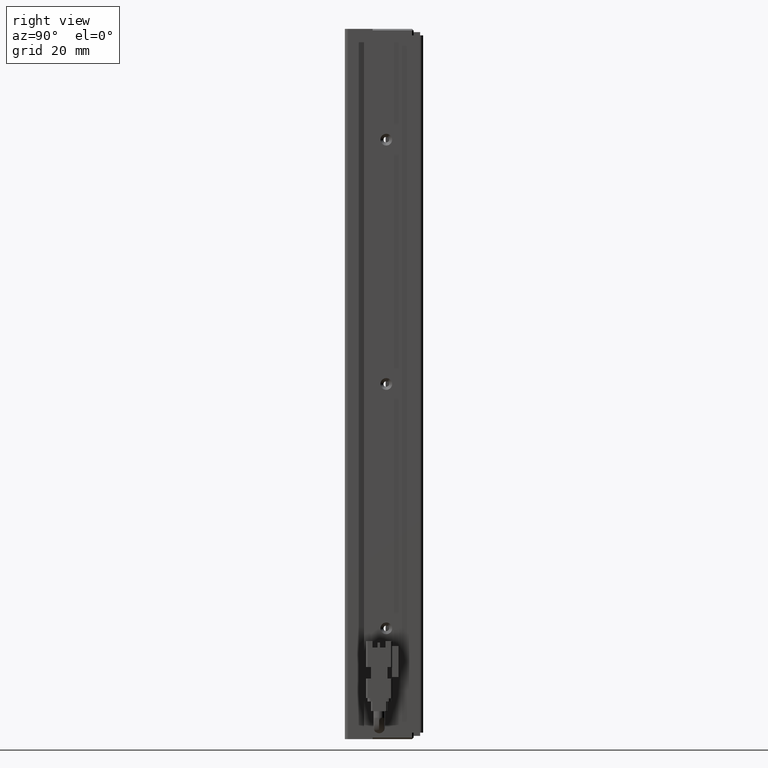
[diagram: clean part render]
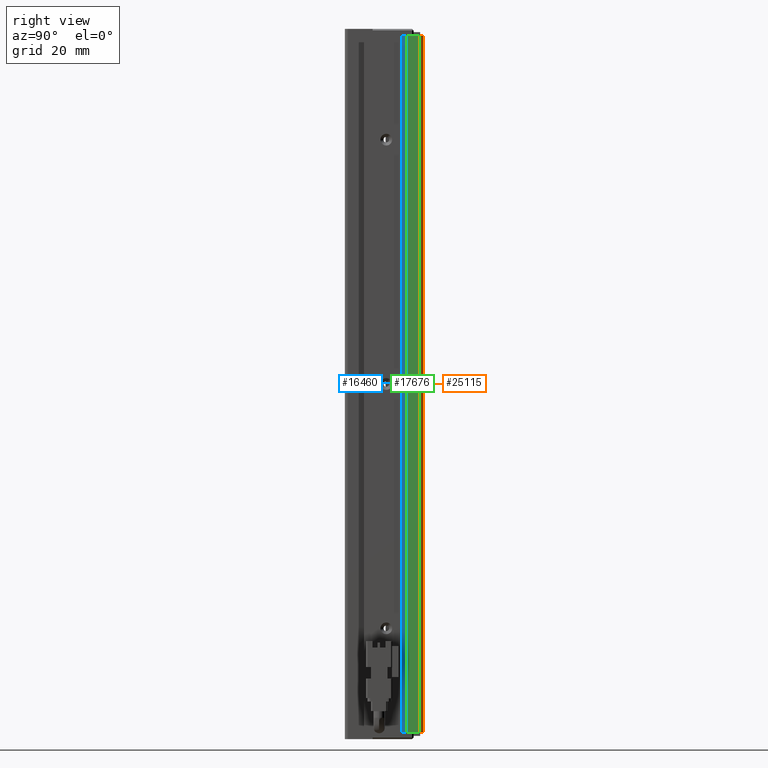
[diagram: same view with three faces highlighted in distinct colors, each labeled with its STEP entity id]
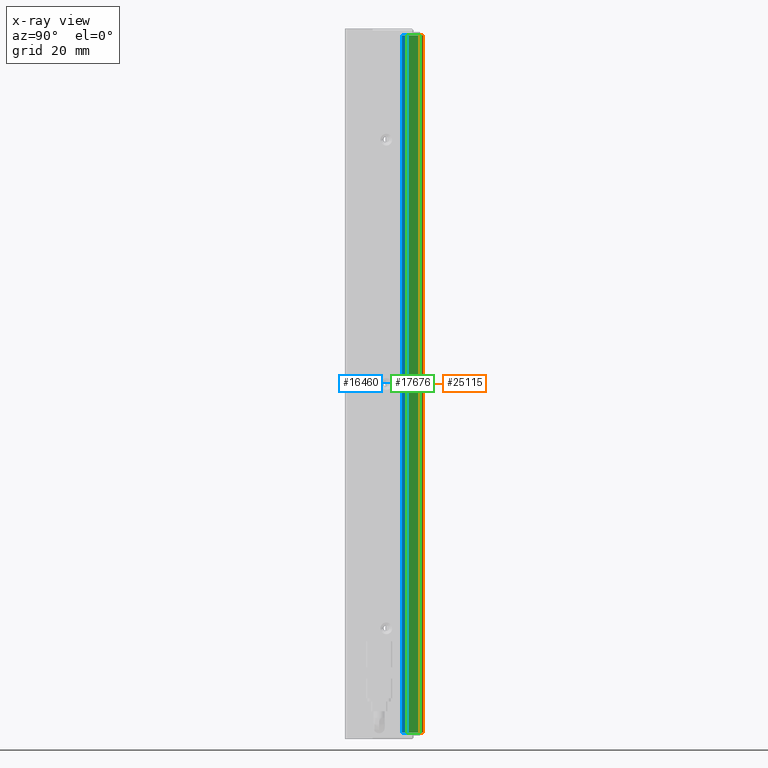
[diagram: x-ray of the same camera — body ghosted, the three highlighted faces saturated]
A machine part, right view with three faces highlighted in distinct colors.
The next image is the same camera in x-ray (body ghosted, the three faces saturated) — at least one of them is partly hidden behind the body in this view.
Their STEP definitions:

[orange] entity #25115 — the highlighted cylindrical surface (edge-blend (fillet) strip) has radius 1 mm, axis along (-0, -0, -1).
#280 = CYLINDRICAL_SURFACE ( 'NONE', #39189, 1.000000000000000900 ) ;
#545 = DIRECTION ( 'NONE',  ( -0.0000000000000000000, -0.0000000000000000000, -1.000000000000000000 ) ) ;
#609 = CIRCLE ( 'NONE', #2718, 1.000000000000000900 ) ;
#702 = CARTESIAN_POINT ( 'NONE',  ( 51.42537974683541800, 33.99073232304837000, -222.0000000000000000 ) ) ;
#1316 = ORIENTED_EDGE ( 'NONE', *, *, #54049, .T. ) ;
#2718 = AXIS2_PLACEMENT_3D ( 'NONE', #45980, #11805, #45265 ) ;
#10220 = EDGE_CURVE ( 'NONE', #32313, #46287, #52945, .T. ) ;
#11144 = DIRECTION ( 'NONE',  ( -0.0000000000000000000, -0.0000000000000000000, -1.000000000000000000 ) ) ;
#11805 = DIRECTION ( 'NONE',  ( 0.0000000000000000000, 0.0000000000000000000, 1.000000000000000000 ) ) ;
#12599 = ORIENTED_EDGE ( 'NONE', *, *, #46702, .T. ) ;
#14161 = DIRECTION ( 'NONE',  ( 0.0000000000000000000, 0.0000000000000000000, 1.000000000000000000 ) ) ;
#15154 = CARTESIAN_POINT ( 'NONE',  ( 50.42537974683541800, 34.99073232304837700, -222.0000000000000000 ) ) ;
#15347 = FACE_OUTER_BOUND ( 'NONE', #50647, .T. ) ;
#16338 = CIRCLE ( 'NONE', #39662, 1.000000000000000900 ) ;
#17797 = CARTESIAN_POINT ( 'NONE',  ( 50.42537974683541800, 33.99073232304837000, -8.000000000000007100 ) ) ;
#18600 = CARTESIAN_POINT ( 'NONE',  ( 50.42537974683541800, 34.99073232304837700, -8.000000000000007100 ) ) ;
#18824 = CARTESIAN_POINT ( 'NONE',  ( 50.42537974683541800, 33.99073232304837000, -6.000000000000005300 ) ) ;
#23773 = ORIENTED_EDGE ( 'NONE', *, *, #26763, .T. ) ;
#25115 = ADVANCED_FACE ( 'NONE', ( #15347 ), #280, .T. ) ;
#25683 = CARTESIAN_POINT ( 'NONE',  ( 50.42537974683541800, 34.99073232304837000, -6.000000000000005300 ) ) ;
#26763 = EDGE_CURVE ( 'NONE', #30300, #32313, #609, .T. ) ;
#29185 = VECTOR ( 'NONE', #545, 1000.000000000000000 ) ;
#29331 = CARTESIAN_POINT ( 'NONE',  ( 51.42537974683541800, 33.99073232304837000, -6.000000000000005300 ) ) ;
#30300 = VERTEX_POINT ( 'NONE', #702 ) ;
#30323 = DIRECTION ( 'NONE',  ( -0.0000000000000000000, -0.0000000000000000000, -1.000000000000000000 ) ) ;
#32070 = DIRECTION ( 'NONE',  ( -1.000000000000000000, 0.0000000000000000000, 0.0000000000000000000 ) ) ;
#32313 = VERTEX_POINT ( 'NONE', #15154 ) ;
#33202 = ORIENTED_EDGE ( 'NONE', *, *, #10220, .T. ) ;
#34598 = DIRECTION ( 'NONE',  ( -1.000000000000000000, 0.0000000000000000000, 0.0000000000000000000 ) ) ;
#37812 = VECTOR ( 'NONE', #14161, 1000.000000000000000 ) ;
#38591 = CARTESIAN_POINT ( 'NONE',  ( 51.42537974683541800, 33.99073232304837000, -8.000000000000007100 ) ) ;
#39082 = LINE ( 'NONE', #29331, #29185 ) ;
#39189 = AXIS2_PLACEMENT_3D ( 'NONE', #18824, #11144, #32070 ) ;
#39662 = AXIS2_PLACEMENT_3D ( 'NONE', #17797, #30323, #34598 ) ;
#45265 = DIRECTION ( 'NONE',  ( -1.000000000000000000, 0.0000000000000000000, 0.0000000000000000000 ) ) ;
#45980 = CARTESIAN_POINT ( 'NONE',  ( 50.42537974683541800, 33.99073232304837000, -222.0000000000000000 ) ) ;
#46287 = VERTEX_POINT ( 'NONE', #18600 ) ;
#46702 = EDGE_CURVE ( 'NONE', #46287, #53580, #16338, .T. ) ;
#50647 = EDGE_LOOP ( 'NONE', ( #1316, #23773, #33202, #12599 ) ) ;
#52945 = LINE ( 'NONE', #25683, #37812 ) ;
#53580 = VERTEX_POINT ( 'NONE', #38591 ) ;
#54049 = EDGE_CURVE ( 'NONE', #53580, #30300, #39082, .T. ) ;

[blue] entity #16460 — the highlighted planar face has unit normal (1, 0, -0).
#553 = DIRECTION ( 'NONE',  ( -0.0000000000000000000, 0.0000000000000000000, -1.000000000000000000 ) ) ;
#2794 = CARTESIAN_POINT ( 'NONE',  ( 50.92537974683541800, 29.99073232304837000, -222.0000000000000000 ) ) ;
#3128 = FACE_OUTER_BOUND ( 'NONE', #5062, .T. ) ;
#5062 = EDGE_LOOP ( 'NONE', ( #27274, #11532, #27841, #52006 ) ) ;
#7311 = DIRECTION ( 'NONE',  ( -0.0000000000000000000, 0.0000000000000000000, -1.000000000000000000 ) ) ;
#8750 = VERTEX_POINT ( 'NONE', #18564 ) ;
#9467 = EDGE_CURVE ( 'NONE', #36146, #19575, #30067, .T. ) ;
#11532 = ORIENTED_EDGE ( 'NONE', *, *, #39621, .F. ) ;
#12701 = CARTESIAN_POINT ( 'NONE',  ( 50.92537974683541800, 28.49073232304836600, -222.0000000000000000 ) ) ;
#14308 = CARTESIAN_POINT ( 'NONE',  ( 50.92537974683541800, 29.99073232304837000, -6.000000000000005300 ) ) ;
#16460 = ADVANCED_FACE ( 'NONE', ( #3128 ), #45705, .T. ) ;
#18564 = CARTESIAN_POINT ( 'NONE',  ( 50.92537974683541800, 29.99073232304837000, -8.000000000000007100 ) ) ;
#19575 = VERTEX_POINT ( 'NONE', #2794 ) ;
#20414 = EDGE_CURVE ( 'NONE', #32567, #36146, #22394, .T. ) ;
#20481 = CARTESIAN_POINT ( 'NONE',  ( 50.92537974683541800, 7.083797468354437600, -6.000000000000005300 ) ) ;
#22394 = LINE ( 'NONE', #26020, #53314 ) ;
#24262 = VECTOR ( 'NONE', #28860, 1000.000000000000000 ) ;
#24663 = DIRECTION ( 'NONE',  ( 0.0000000000000000000, 1.000000000000000000, 0.0000000000000000000 ) ) ;
#26020 = CARTESIAN_POINT ( 'NONE',  ( 50.92537974683541800, 28.49073232304836600, -6.000000000000005300 ) ) ;
#27274 = ORIENTED_EDGE ( 'NONE', *, *, #9467, .T. ) ;
#27841 = ORIENTED_EDGE ( 'NONE', *, *, #46482, .T. ) ;
#28860 = DIRECTION ( 'NONE',  ( -0.0000000000000000000, -1.000000000000000000, -0.0000000000000000000 ) ) ;
#30067 = LINE ( 'NONE', #53709, #45824 ) ;
#31955 = AXIS2_PLACEMENT_3D ( 'NONE', #20481, #45520, #7311 ) ;
#32217 = LINE ( 'NONE', #54017, #24262 ) ;
#32567 = VERTEX_POINT ( 'NONE', #50423 ) ;
#33452 = VECTOR ( 'NONE', #44267, 1000.000000000000000 ) ;
#36146 = VERTEX_POINT ( 'NONE', #12701 ) ;
#38719 = LINE ( 'NONE', #14308, #33452 ) ;
#39621 = EDGE_CURVE ( 'NONE', #8750, #19575, #38719, .T. ) ;
#44267 = DIRECTION ( 'NONE',  ( 0.0000000000000000000, -0.0000000000000000000, -1.000000000000000000 ) ) ;
#45520 = DIRECTION ( 'NONE',  ( 1.000000000000000000, 0.0000000000000000000, -0.0000000000000000000 ) ) ;
#45705 = PLANE ( 'NONE',  #31955 ) ;
#45824 = VECTOR ( 'NONE', #24663, 1000.000000000000000 ) ;
#46482 = EDGE_CURVE ( 'NONE', #8750, #32567, #32217, .T. ) ;
#50423 = CARTESIAN_POINT ( 'NONE',  ( 50.92537974683541800, 28.49073232304836600, -8.000000000000007100 ) ) ;
#52006 = ORIENTED_EDGE ( 'NONE', *, *, #20414, .T. ) ;
#53314 = VECTOR ( 'NONE', #553, 1000.000000000000000 ) ;
#53709 = CARTESIAN_POINT ( 'NONE',  ( 50.92537974683541800, 7.083797468354437600, -222.0000000000000000 ) ) ;
#54017 = CARTESIAN_POINT ( 'NONE',  ( 50.92537974683541800, 7.083797468354437600, -8.000000000000007100 ) ) ;

[green] entity #17676 — the highlighted planar face has unit normal (-1, -0, 0).
#102 = VECTOR ( 'NONE', #17574, 1000.000000000000000 ) ;
#295 = VERTEX_POINT ( 'NONE', #9076 ) ;
#545 = DIRECTION ( 'NONE',  ( -0.0000000000000000000, -0.0000000000000000000, -1.000000000000000000 ) ) ;
#702 = CARTESIAN_POINT ( 'NONE',  ( 51.42537974683541800, 33.99073232304837000, -222.0000000000000000 ) ) ;
#3227 = VECTOR ( 'NONE', #9492, 1000.000000000000000 ) ;
#3381 = EDGE_CURVE ( 'NONE', #30300, #295, #49133, .T. ) ;
#4326 = PLANE ( 'NONE',  #53715 ) ;
#7600 = DIRECTION ( 'NONE',  ( -0.0000000000000000000, -1.000000000000000000, -0.0000000000000000000 ) ) ;
#9076 = CARTESIAN_POINT ( 'NONE',  ( 51.42537974683541800, 29.99073232304837000, -222.0000000000000000 ) ) ;
#9492 = DIRECTION ( 'NONE',  ( 0.0000000000000000000, 0.0000000000000000000, 1.000000000000000000 ) ) ;
#9816 = EDGE_LOOP ( 'NONE', ( #26532, #43676, #23193, #39961 ) ) ;
#13374 = CARTESIAN_POINT ( 'NONE',  ( 51.42537974683541800, 34.99073232304837700, -8.000000000000007100 ) ) ;
#13499 = DIRECTION ( 'NONE',  ( -1.000000000000000000, -4.336808689942017700E-016, 0.0000000000000000000 ) ) ;
#16728 = VERTEX_POINT ( 'NONE', #26450 ) ;
#17574 = DIRECTION ( 'NONE',  ( -0.0000000000000000000, -1.000000000000000000, -0.0000000000000000000 ) ) ;
#17676 = ADVANCED_FACE ( 'NONE', ( #21224 ), #4326, .F. ) ;
#21224 = FACE_OUTER_BOUND ( 'NONE', #9816, .T. ) ;
#23193 = ORIENTED_EDGE ( 'NONE', *, *, #3381, .F. ) ;
#24891 = EDGE_CURVE ( 'NONE', #53580, #16728, #43843, .T. ) ;
#26450 = CARTESIAN_POINT ( 'NONE',  ( 51.42537974683541800, 29.99073232304837000, -8.000000000000007100 ) ) ;
#26532 = ORIENTED_EDGE ( 'NONE', *, *, #24891, .T. ) ;
#29185 = VECTOR ( 'NONE', #545, 1000.000000000000000 ) ;
#29331 = CARTESIAN_POINT ( 'NONE',  ( 51.42537974683541800, 33.99073232304837000, -6.000000000000005300 ) ) ;
#30116 = VECTOR ( 'NONE', #7600, 1000.000000000000000 ) ;
#30300 = VERTEX_POINT ( 'NONE', #702 ) ;
#30972 = CARTESIAN_POINT ( 'NONE',  ( 51.42537974683541800, 29.99073232304837000, -6.000000000000005300 ) ) ;
#32226 = CARTESIAN_POINT ( 'NONE',  ( 51.42537974683541800, 34.99073232304837700, -222.0000000000000000 ) ) ;
#38591 = CARTESIAN_POINT ( 'NONE',  ( 51.42537974683541800, 33.99073232304837000, -8.000000000000007100 ) ) ;
#39082 = LINE ( 'NONE', #29331, #29185 ) ;
#39961 = ORIENTED_EDGE ( 'NONE', *, *, #54049, .F. ) ;
#41597 = EDGE_CURVE ( 'NONE', #295, #16728, #47950, .T. ) ;
#42563 = CARTESIAN_POINT ( 'NONE',  ( 51.42537974683543200, 7.083797468354442000, -6.000000000000005300 ) ) ;
#43676 = ORIENTED_EDGE ( 'NONE', *, *, #41597, .F. ) ;
#43843 = LINE ( 'NONE', #13374, #102 ) ;
#47950 = LINE ( 'NONE', #30972, #3227 ) ;
#49133 = LINE ( 'NONE', #32226, #30116 ) ;
#51184 = DIRECTION ( 'NONE',  ( 4.336808689942017700E-016, -1.000000000000000000, 0.0000000000000000000 ) ) ;
#53580 = VERTEX_POINT ( 'NONE', #38591 ) ;
#53715 = AXIS2_PLACEMENT_3D ( 'NONE', #42563, #13499, #51184 ) ;
#54049 = EDGE_CURVE ( 'NONE', #53580, #30300, #39082, .T. ) ;